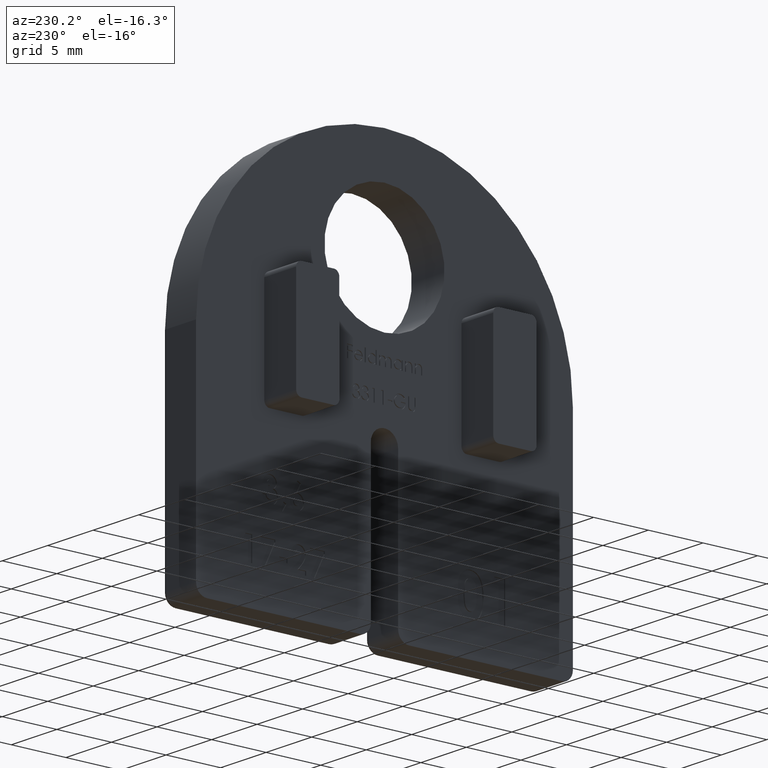
[diagram: clean part render]
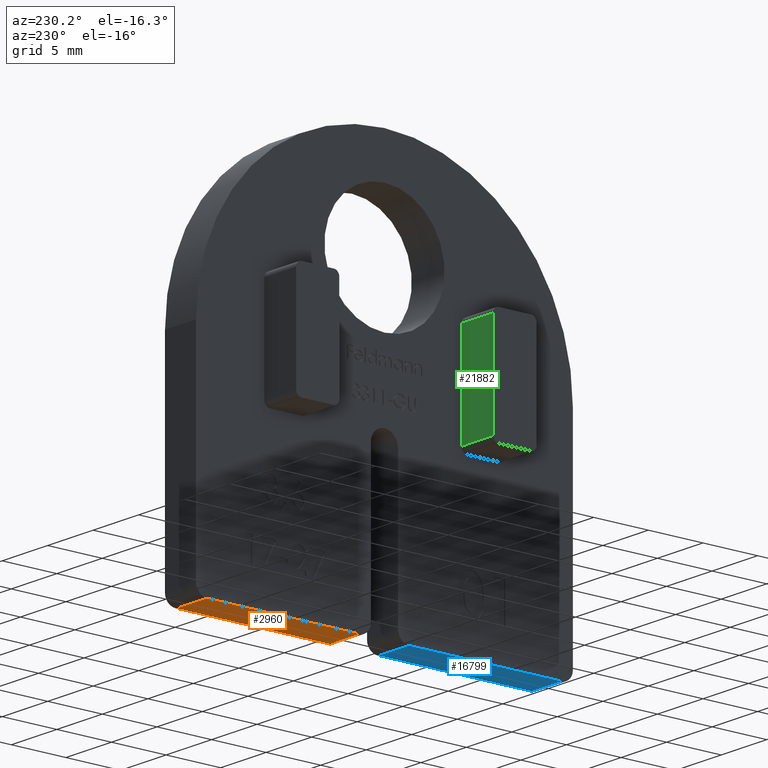
[diagram: same view with three faces highlighted in distinct colors, each labeled with its STEP entity id]
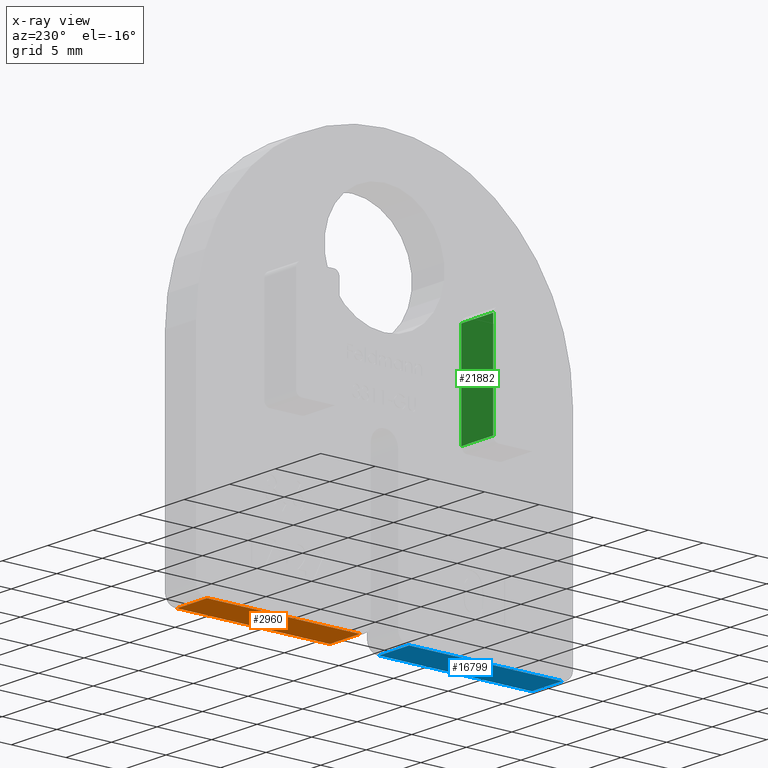
[diagram: x-ray of the same camera — body ghosted, the three highlighted faces saturated]
A machine part, auxiliary view with three faces highlighted in distinct colors.
The next image is the same camera in x-ray (body ghosted, the three faces saturated) — at least one of them is partly hidden behind the body in this view.
Their STEP definitions:

[orange] entity #2960 — the highlighted planar face has unit normal (0, 0, 1).
#1250 = CARTESIAN_POINT ( 'NONE',  ( 3.600000000000000100, 16.25000000000000000, 0.0000000000000000000 ) ) ;
#2960 = ADVANCED_FACE ( 'NONE', ( #12417 ), #7512, .F. ) ;
#3379 = VERTEX_POINT ( 'NONE', #6564 ) ;
#3562 = ORIENTED_EDGE ( 'NONE', *, *, #5735, .T. ) ;
#4008 = DIRECTION ( 'NONE',  ( -0.0000000000000000000, -1.000000000000000000, 0.0000000000000000000 ) ) ;
#4168 = CARTESIAN_POINT ( 'NONE',  ( 3.600000000000000100, 2.250000000000000400, 0.0000000000000000000 ) ) ;
#5633 = DIRECTION ( 'NONE',  ( 0.0000000000000000000, 1.000000000000000000, 0.0000000000000000000 ) ) ;
#5735 = EDGE_CURVE ( 'NONE', #20873, #6900, #17647, .T. ) ;
#5813 = DIRECTION ( 'NONE',  ( 1.000000000000000000, 0.0000000000000000000, -0.0000000000000000000 ) ) ;
#5974 = DIRECTION ( 'NONE',  ( -1.000000000000000000, -0.0000000000000000000, 0.0000000000000000000 ) ) ;
#6564 = CARTESIAN_POINT ( 'NONE',  ( 3.299999999999999800, 16.25000000000000000, 0.0000000000000000000 ) ) ;
#6900 = VERTEX_POINT ( 'NONE', #14988 ) ;
#7228 = CARTESIAN_POINT ( 'NONE',  ( 3.299999999999999800, 2.250000000000000400, 0.0000000000000000000 ) ) ;
#7512 = PLANE ( 'NONE',  #8777 ) ;
#8777 = AXIS2_PLACEMENT_3D ( 'NONE', #13745, #21754, #5813 ) ;
#9613 = CARTESIAN_POINT ( 'NONE',  ( 0.0000000000000000000, 16.25000000000000000, 0.0000000000000000000 ) ) ;
#9802 = EDGE_CURVE ( 'NONE', #6900, #13496, #20078, .T. ) ;
#11982 = DIRECTION ( 'NONE',  ( 1.000000000000000000, -0.0000000000000000000, -0.0000000000000000000 ) ) ;
#12417 = FACE_OUTER_BOUND ( 'NONE', #14490, .T. ) ;
#12626 = LINE ( 'NONE', #1250, #16239 ) ;
#13465 = LINE ( 'NONE', #21984, #22659 ) ;
#13496 = VERTEX_POINT ( 'NONE', #9613 ) ;
#13745 = CARTESIAN_POINT ( 'NONE',  ( 3.600000000000000100, 1.250000000000000200, 0.0000000000000000000 ) ) ;
#14490 = EDGE_LOOP ( 'NONE', ( #21136, #15323, #19536, #3562 ) ) ;
#14988 = CARTESIAN_POINT ( 'NONE',  ( 0.0000000000000000000, 2.250000000000000400, 0.0000000000000000000 ) ) ;
#15259 = EDGE_CURVE ( 'NONE', #13496, #3379, #12626, .T. ) ;
#15323 = ORIENTED_EDGE ( 'NONE', *, *, #15259, .T. ) ;
#15704 = EDGE_CURVE ( 'NONE', #3379, #20873, #13465, .T. ) ;
#16239 = VECTOR ( 'NONE', #11982, 1000.000000000000000 ) ;
#17647 = LINE ( 'NONE', #4168, #22357 ) ;
#17844 = VECTOR ( 'NONE', #5633, 1000.000000000000000 ) ;
#18170 = CARTESIAN_POINT ( 'NONE',  ( 0.0000000000000000000, 1.250000000000000200, 0.0000000000000000000 ) ) ;
#19536 = ORIENTED_EDGE ( 'NONE', *, *, #15704, .T. ) ;
#20078 = LINE ( 'NONE', #18170, #17844 ) ;
#20873 = VERTEX_POINT ( 'NONE', #7228 ) ;
#21136 = ORIENTED_EDGE ( 'NONE', *, *, #9802, .T. ) ;
#21754 = DIRECTION ( 'NONE',  ( 0.0000000000000000000, 0.0000000000000000000, 1.000000000000000000 ) ) ;
#21984 = CARTESIAN_POINT ( 'NONE',  ( 3.299999999999999800, 1.250000000000000200, 0.0000000000000000000 ) ) ;
#22357 = VECTOR ( 'NONE', #5974, 1000.000000000000000 ) ;
#22659 = VECTOR ( 'NONE', #4008, 1000.000000000000000 ) ;

[blue] entity #16799 — the highlighted planar face has unit normal (0, 0, 1).
#917 = ORIENTED_EDGE ( 'NONE', *, *, #16352, .T. ) ;
#1198 = LINE ( 'NONE', #16335, #13444 ) ;
#1597 = CARTESIAN_POINT ( 'NONE',  ( 3.299999999999999800, -17.25000000000000000, 0.0000000000000000000 ) ) ;
#2044 = AXIS2_PLACEMENT_3D ( 'NONE', #22331, #9808, #4517 ) ;
#3242 = VERTEX_POINT ( 'NONE', #5590 ) ;
#3303 = CARTESIAN_POINT ( 'NONE',  ( 0.0000000000000000000, -17.25000000000000000, 0.0000000000000000000 ) ) ;
#4517 = DIRECTION ( 'NONE',  ( 1.000000000000000000, 0.0000000000000000000, -0.0000000000000000000 ) ) ;
#5590 = CARTESIAN_POINT ( 'NONE',  ( 0.0000000000000000000, -2.250000000000000400, 0.0000000000000000000 ) ) ;
#5861 = PLANE ( 'NONE',  #2044 ) ;
#6184 = EDGE_LOOP ( 'NONE', ( #15434, #17708, #13473, #917 ) ) ;
#6615 = EDGE_CURVE ( 'NONE', #3242, #8648, #1198, .T. ) ;
#6791 = VECTOR ( 'NONE', #8524, 1000.000000000000000 ) ;
#8524 = DIRECTION ( 'NONE',  ( 0.0000000000000000000, 1.000000000000000000, 0.0000000000000000000 ) ) ;
#8648 = VERTEX_POINT ( 'NONE', #9667 ) ;
#9667 = CARTESIAN_POINT ( 'NONE',  ( 3.299999999999999800, -2.250000000000000400, 0.0000000000000000000 ) ) ;
#9713 = LINE ( 'NONE', #1597, #16122 ) ;
#9808 = DIRECTION ( 'NONE',  ( 0.0000000000000000000, 0.0000000000000000000, 1.000000000000000000 ) ) ;
#10358 = DIRECTION ( 'NONE',  ( -0.0000000000000000000, -1.000000000000000000, 0.0000000000000000000 ) ) ;
#11649 = VERTEX_POINT ( 'NONE', #17084 ) ;
#13444 = VECTOR ( 'NONE', #18064, 1000.000000000000000 ) ;
#13473 = ORIENTED_EDGE ( 'NONE', *, *, #21564, .T. ) ;
#14562 = LINE ( 'NONE', #3303, #6791 ) ;
#14852 = VERTEX_POINT ( 'NONE', #22038 ) ;
#15401 = EDGE_CURVE ( 'NONE', #14852, #3242, #14562, .T. ) ;
#15434 = ORIENTED_EDGE ( 'NONE', *, *, #15401, .T. ) ;
#16122 = VECTOR ( 'NONE', #10358, 1000.000000000000000 ) ;
#16335 = CARTESIAN_POINT ( 'NONE',  ( 3.600000000000000100, -2.250000000000000400, 0.0000000000000000000 ) ) ;
#16352 = EDGE_CURVE ( 'NONE', #11649, #14852, #18804, .T. ) ;
#16799 = ADVANCED_FACE ( 'NONE', ( #22637 ), #5861, .F. ) ;
#17084 = CARTESIAN_POINT ( 'NONE',  ( 3.299999999999999800, -16.25000000000000000, 0.0000000000000000000 ) ) ;
#17367 = DIRECTION ( 'NONE',  ( -1.000000000000000000, -0.0000000000000000000, 0.0000000000000000000 ) ) ;
#17675 = CARTESIAN_POINT ( 'NONE',  ( 3.600000000000000100, -16.25000000000000000, 0.0000000000000000000 ) ) ;
#17708 = ORIENTED_EDGE ( 'NONE', *, *, #6615, .T. ) ;
#18064 = DIRECTION ( 'NONE',  ( 1.000000000000000000, -0.0000000000000000000, -0.0000000000000000000 ) ) ;
#18804 = LINE ( 'NONE', #17675, #21842 ) ;
#21564 = EDGE_CURVE ( 'NONE', #8648, #11649, #9713, .T. ) ;
#21842 = VECTOR ( 'NONE', #17367, 1000.000000000000000 ) ;
#22038 = CARTESIAN_POINT ( 'NONE',  ( 0.0000000000000000000, -16.25000000000000000, 0.0000000000000000000 ) ) ;
#22331 = CARTESIAN_POINT ( 'NONE',  ( 3.600000000000000100, -17.25000000000000000, 0.0000000000000000000 ) ) ;
#22637 = FACE_OUTER_BOUND ( 'NONE', #6184, .T. ) ;

[green] entity #21882 — the highlighted planar face has unit normal (0, -1, 0).
#552 = CARTESIAN_POINT ( 'NONE',  ( 0.0000000000000000000, -7.049999999999999800, 25.00000000000000000 ) ) ;
#1043 = AXIS2_PLACEMENT_3D ( 'NONE', #13181, #16759, #19116 ) ;
#1456 = EDGE_CURVE ( 'NONE', #19008, #16300, #4364, .T. ) ;
#1599 = EDGE_LOOP ( 'NONE', ( #6640, #9051, #6549, #5562 ) ) ;
#2304 = VECTOR ( 'NONE', #15187, 1000.000000000000000 ) ;
#2762 = LINE ( 'NONE', #20790, #6390 ) ;
#4364 = LINE ( 'NONE', #17022, #22975 ) ;
#4458 = LINE ( 'NONE', #552, #13922 ) ;
#4636 = DIRECTION ( 'NONE',  ( 1.000000000000000000, 0.0000000000000000000, 0.0000000000000000000 ) ) ;
#5562 = ORIENTED_EDGE ( 'NONE', *, *, #6319, .T. ) ;
#6293 = CARTESIAN_POINT ( 'NONE',  ( -3.500000000000000000, -7.050000000000000700, 15.50000000000000000 ) ) ;
#6319 = EDGE_CURVE ( 'NONE', #21051, #13571, #9518, .T. ) ;
#6390 = VECTOR ( 'NONE', #10105, 1000.000000000000000 ) ;
#6549 = ORIENTED_EDGE ( 'NONE', *, *, #10194, .T. ) ;
#6640 = ORIENTED_EDGE ( 'NONE', *, *, #22729, .F. ) ;
#9051 = ORIENTED_EDGE ( 'NONE', *, *, #1456, .T. ) ;
#9518 = LINE ( 'NONE', #15111, #2304 ) ;
#9697 = CARTESIAN_POINT ( 'NONE',  ( 0.0000000000000000000, -7.050000000000000700, 15.50000000000000000 ) ) ;
#10105 = DIRECTION ( 'NONE',  ( 0.0000000000000000000, -8.673617379884034200E-017, -1.000000000000000000 ) ) ;
#10194 = EDGE_CURVE ( 'NONE', #16300, #21051, #4458, .T. ) ;
#12742 = CARTESIAN_POINT ( 'NONE',  ( -3.500000000000000000, -7.049999999999999800, 24.50000000000000000 ) ) ;
#13181 = CARTESIAN_POINT ( 'NONE',  ( -3.500000000000000000, -7.049999999999999800, 25.00000000000000000 ) ) ;
#13571 = VERTEX_POINT ( 'NONE', #6293 ) ;
#13922 = VECTOR ( 'NONE', #16498, 1000.000000000000000 ) ;
#15111 = CARTESIAN_POINT ( 'NONE',  ( -3.500000000000000000, -7.050000000000000700, 15.50000000000000000 ) ) ;
#15187 = DIRECTION ( 'NONE',  ( -1.000000000000000000, -0.0000000000000000000, -0.0000000000000000000 ) ) ;
#16300 = VERTEX_POINT ( 'NONE', #17214 ) ;
#16498 = DIRECTION ( 'NONE',  ( 0.0000000000000000000, -8.673617379884034200E-017, -1.000000000000000000 ) ) ;
#16759 = DIRECTION ( 'NONE',  ( 0.0000000000000000000, -1.000000000000000000, 8.673617379884035500E-017 ) ) ;
#17022 = CARTESIAN_POINT ( 'NONE',  ( -3.500000000000000000, -7.049999999999999800, 24.50000000000000000 ) ) ;
#17214 = CARTESIAN_POINT ( 'NONE',  ( 0.0000000000000000000, -7.049999999999999800, 24.50000000000000000 ) ) ;
#19008 = VERTEX_POINT ( 'NONE', #12742 ) ;
#19116 = DIRECTION ( 'NONE',  ( 0.0000000000000000000, -8.673617379884035500E-017, -1.000000000000000000 ) ) ;
#20790 = CARTESIAN_POINT ( 'NONE',  ( -3.500000000000000000, -7.049999999999999800, 25.00000000000000000 ) ) ;
#21051 = VERTEX_POINT ( 'NONE', #9697 ) ;
#21882 = ADVANCED_FACE ( 'NONE', ( #21981 ), #22642, .F. ) ;
#21981 = FACE_OUTER_BOUND ( 'NONE', #1599, .T. ) ;
#22642 = PLANE ( 'NONE',  #1043 ) ;
#22729 = EDGE_CURVE ( 'NONE', #19008, #13571, #2762, .T. ) ;
#22975 = VECTOR ( 'NONE', #4636, 1000.000000000000000 ) ;